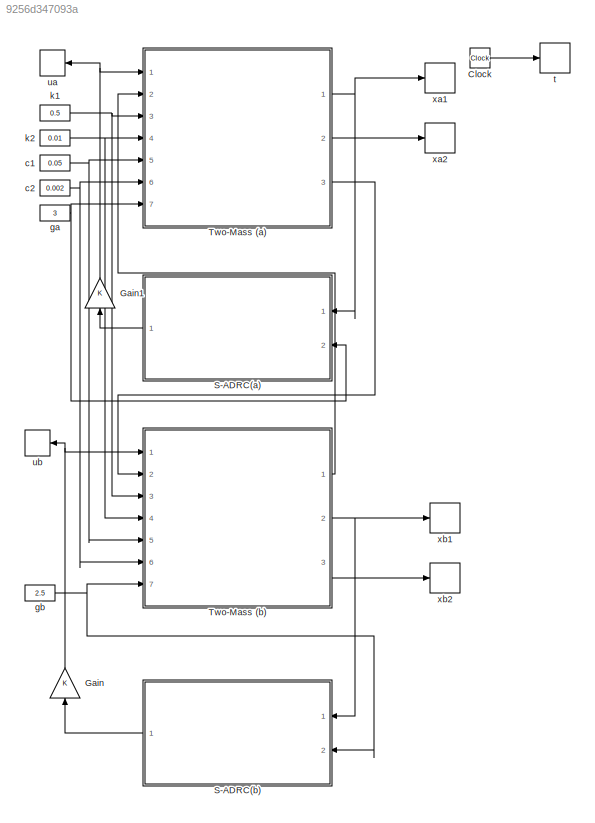
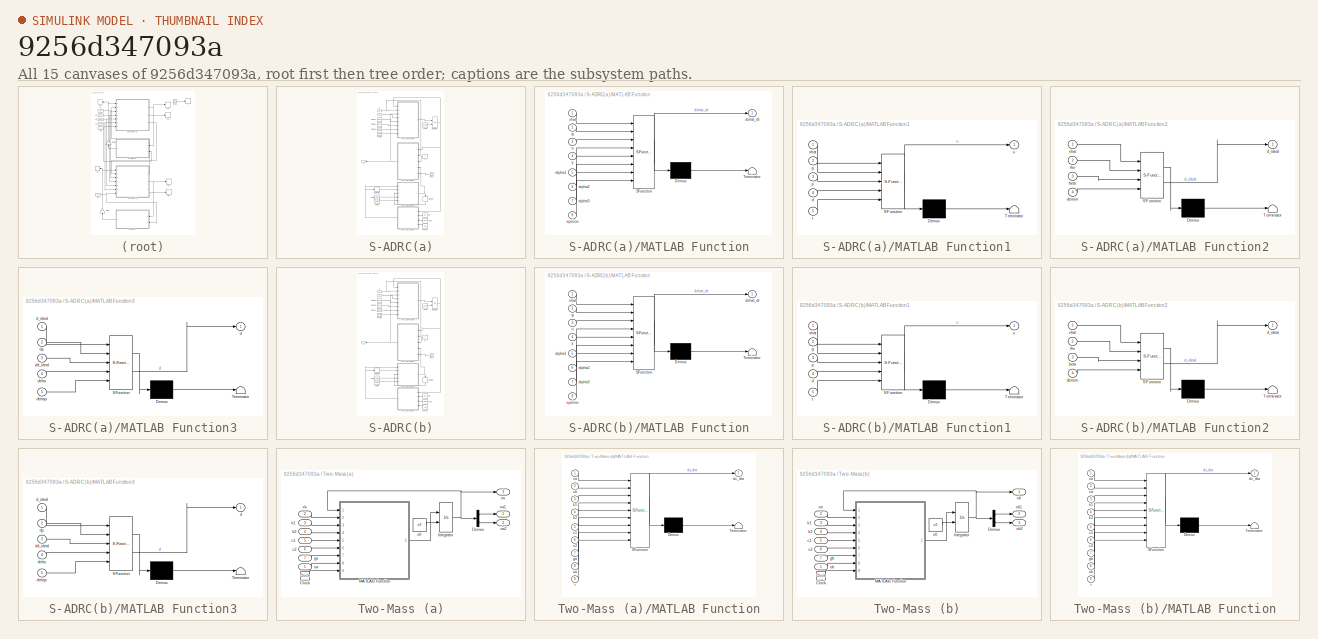
[diagram: thumbnail index - all 15 canvases of the model, root first then tree order]
MODEL slx_9256d347093a
KIND model
CONFIG AbsTol = auto
CONFIG EnableMultiTasking = off
CONFIG FixedStep = auto
CONFIG MaxStep = auto
CONFIG MinStep = auto
CONFIG RelTol = auto
CONFIG SampleTimeConstraint = Unconstrained
CONFIG SolverName = VariableStepAuto
CONFIG StartTime = 0.0
CONFIG StopTime = 10
BLOCK [Clock] Clock
BLOCK [Gain] Gain
  NameLocation = right
BLOCK [Gain] Gain1
  NameLocation = right
BLOCK [SubSystem] S-ADRC(a)
  Ports = [2, 1]
  RequestExecContextInheritance = off
BLOCK [Clock] S-ADRC(a)/Clock
BLOCK [Derivative] S-ADRC(a)/Derivative
BLOCK [Integrator] S-ADRC(a)/Integrator
  InitialConditionSource = external
  Ports = [2, 1]
BLOCK [SubSystem] S-ADRC(a)/MATLAB Function
  ErrorFcn = Stateflow.Translate.translate
  PermitHierarchicalResolution = ExplicitOnly
  Ports = [8, 1]
  RequestExecContextInheritance = off
  SFBlockType = MATLAB Function
  TreatAsAtomicUnit = on
BLOCK [Demux] S-ADRC(a)/MATLAB Function/ Demux 
  Outputs = 1
  Ports = [1, 1]
BLOCK [S-Function] S-ADRC(a)/MATLAB Function/ SFunction 
  EnableBusSupport = on
  FunctionName = sf_sfun
  PortCounts = [8 2]
  Ports = [8, 2]
  SFcnIsStateOwnerBlock = off
  SFunctionDeploymentMode = off
  Tag = Stateflow S-Function 6
BLOCK [Terminator] S-ADRC(a)/MATLAB Function/ Terminator 
BLOCK [Inport] S-ADRC(a)/MATLAB Function/alpha1
  Port = 5
BLOCK [Inport] S-ADRC(a)/MATLAB Function/alpha2
  Port = 6
BLOCK [Inport] S-ADRC(a)/MATLAB Function/alpha3
  Port = 7
BLOCK [Outport] S-ADRC(a)/MATLAB Function/dxhat_dt
BLOCK [Inport] S-ADRC(a)/MATLAB Function/epsilon
  Port = 8
BLOCK [Inport] S-ADRC(a)/MATLAB Function/g
  Port = 2
BLOCK [Inport] S-ADRC(a)/MATLAB Function/u
  Port = 3
BLOCK [Inport] S-ADRC(a)/MATLAB Function/xhat
BLOCK [Inport] S-ADRC(a)/MATLAB Function/y
  Port = 4
BLOCK [SubSystem] S-ADRC(a)/MATLAB Function1
  ErrorFcn = Stateflow.Translate.translate
  PermitHierarchicalResolution = ExplicitOnly
  Ports = [5, 1]
  RequestExecContextInheritance = off
  SFBlockType = MATLAB Function
  TreatAsAtomicUnit = on
BLOCK [Demux] S-ADRC(a)/MATLAB Function1/ Demux 
  Outputs = 1
  Ports = [1, 1]
BLOCK [S-Function] S-ADRC(a)/MATLAB Function1/ SFunction 
  EnableBusSupport = on
  FunctionName = sf_sfun
  PortCounts = [5 2]
  Ports = [5, 2]
  SFcnIsStateOwnerBlock = off
  SFunctionDeploymentMode = off
  Tag = Stateflow S-Function 7
BLOCK [Terminator] S-ADRC(a)/MATLAB Function1/ Terminator 
BLOCK [Inport] S-ADRC(a)/MATLAB Function1/d
  Port = 4
BLOCK [Inport] S-ADRC(a)/MATLAB Function1/g
  Port = 2
BLOCK [Inport] S-ADRC(a)/MATLAB Function1/p
  Port = 3
BLOCK [Inport] S-ADRC(a)/MATLAB Function1/t
  Port = 5
BLOCK [Outport] S-ADRC(a)/MATLAB Function1/u
BLOCK [Inport] S-ADRC(a)/MATLAB Function1/xhat
BLOCK [SubSystem] S-ADRC(a)/MATLAB Function2
  ErrorFcn = Stateflow.Translate.translate
  PermitHierarchicalResolution = ExplicitOnly
  Ports = [4, 1]
  RequestExecContextInheritance = off
  SFBlockType = MATLAB Function
  TreatAsAtomicUnit = on
BLOCK [Demux] S-ADRC(a)/MATLAB Function2/ Demux 
  Outputs = 1
  Ports = [1, 1]
BLOCK [S-Function] S-ADRC(a)/MATLAB Function2/ SFunction 
  EnableBusSupport = on
  FunctionName = sf_sfun
  PortCounts = [4 2]
  Ports = [4, 2]
  SFcnIsStateOwnerBlock = off
  SFunctionDeploymentMode = off
  Tag = Stateflow S-Function 8
BLOCK [Terminator] S-ADRC(a)/MATLAB Function2/ Terminator 
BLOCK [Inport] S-ADRC(a)/MATLAB Function2/beta
  Port = 3
BLOCK [Outport] S-ADRC(a)/MATLAB Function2/d_ideal
BLOCK [Inport] S-ADRC(a)/MATLAB Function2/denom
  Port = 4
BLOCK [Inport] S-ADRC(a)/MATLAB Function2/rho
  Port = 2
BLOCK [Inport] S-ADRC(a)/MATLAB Function2/xhat
BLOCK [SubSystem] S-ADRC(a)/MATLAB Function3
  ErrorFcn = Stateflow.Translate.translate
  PermitHierarchicalResolution = ExplicitOnly
  Ports = [5, 1]
  RequestExecContextInheritance = off
  SFBlockType = MATLAB Function
  TreatAsAtomicUnit = on
BLOCK [Demux] S-ADRC(a)/MATLAB Function3/ Demux 
  Outputs = 1
  Ports = [1, 1]
BLOCK [S-Function] S-ADRC(a)/MATLAB Function3/ SFunction 
  EnableBusSupport = on
  FunctionName = sf_sfun
  PortCounts = [5 2]
  Ports = [5, 2]
  SFcnIsStateOwnerBlock = off
  SFunctionDeploymentMode = off
  Tag = Stateflow S-Function 9
BLOCK [Terminator] S-ADRC(a)/MATLAB Function3/ Terminator 
BLOCK [Outport] S-ADRC(a)/MATLAB Function3/d
BLOCK [Inport] S-ADRC(a)/MATLAB Function3/d_ideal
BLOCK [Inport] S-ADRC(a)/MATLAB Function3/dd_ideal
  Port = 3
BLOCK [Inport] S-ADRC(a)/MATLAB Function3/delta
  Port = 4
BLOCK [Inport] S-ADRC(a)/MATLAB Function3/deltap
  Port = 5
BLOCK [Inport] S-ADRC(a)/MATLAB Function3/dp
  Port = 2
BLOCK [Memory] S-ADRC(a)/Memory
  NameLocation = left
BLOCK [Constant] S-ADRC(a)/alpha1
  Value = alpha1
BLOCK [Constant] S-ADRC(a)/alpha2
  Value = alpha2
BLOCK [Constant] S-ADRC(a)/alpha3
  Value = alpha3
BLOCK [Constant] S-ADRC(a)/beta
  Value = beta
BLOCK [Constant] S-ADRC(a)/delta
  Value = delta
BLOCK [Constant] S-ADRC(a)/deltap
  Value = deltap
BLOCK [Constant] S-ADRC(a)/denom
  Value = 1e-6
BLOCK [Constant] S-ADRC(a)/epsilon
  Value = epsilon
BLOCK [Inport] S-ADRC(a)/g
  Port = 2
BLOCK [Constant] S-ADRC(a)/p
  Value = p
BLOCK [Constant] S-ADRC(a)/rho
  Value = rho
BLOCK [Outport] S-ADRC(a)/u
BLOCK [Constant] S-ADRC(a)/xhat0
  Value = xhat0
BLOCK [Inport] S-ADRC(a)/y
BLOCK [SubSystem] S-ADRC(b)
  Ports = [2, 1]
  RequestExecContextInheritance = off
BLOCK [Clock] S-ADRC(b)/Clock
BLOCK [Derivative] S-ADRC(b)/Derivative
BLOCK [Integrator] S-ADRC(b)/Integrator
  InitialConditionSource = external
  Ports = [2, 1]
BLOCK [SubSystem] S-ADRC(b)/MATLAB Function
  ErrorFcn = Stateflow.Translate.translate
  PermitHierarchicalResolution = ExplicitOnly
  Ports = [8, 1]
  RequestExecContextInheritance = off
  SFBlockType = MATLAB Function
  TreatAsAtomicUnit = on
BLOCK [Demux] S-ADRC(b)/MATLAB Function/ Demux 
  Outputs = 1
  Ports = [1, 1]
BLOCK [S-Function] S-ADRC(b)/MATLAB Function/ SFunction 
  EnableBusSupport = on
  FunctionName = sf_sfun
  PortCounts = [8 2]
  Ports = [8, 2]
  SFcnIsStateOwnerBlock = off
  SFunctionDeploymentMode = off
  Tag = Stateflow S-Function 1
BLOCK [Terminator] S-ADRC(b)/MATLAB Function/ Terminator 
BLOCK [Inport] S-ADRC(b)/MATLAB Function/alpha1
  Port = 5
BLOCK [Inport] S-ADRC(b)/MATLAB Function/alpha2
  Port = 6
BLOCK [Inport] S-ADRC(b)/MATLAB Function/alpha3
  Port = 7
BLOCK [Outport] S-ADRC(b)/MATLAB Function/dxhat_dt
BLOCK [Inport] S-ADRC(b)/MATLAB Function/epsilon
  Port = 8
BLOCK [Inport] S-ADRC(b)/MATLAB Function/g
  Port = 2
BLOCK [Inport] S-ADRC(b)/MATLAB Function/u
  Port = 3
BLOCK [Inport] S-ADRC(b)/MATLAB Function/xhat
BLOCK [Inport] S-ADRC(b)/MATLAB Function/y
  Port = 4
BLOCK [SubSystem] S-ADRC(b)/MATLAB Function1
  ErrorFcn = Stateflow.Translate.translate
  PermitHierarchicalResolution = ExplicitOnly
  Ports = [5, 1]
  RequestExecContextInheritance = off
  SFBlockType = MATLAB Function
  TreatAsAtomicUnit = on
BLOCK [Demux] S-ADRC(b)/MATLAB Function1/ Demux 
  Outputs = 1
  Ports = [1, 1]
BLOCK [S-Function] S-ADRC(b)/MATLAB Function1/ SFunction 
  EnableBusSupport = on
  FunctionName = sf_sfun
  PortCounts = [5 2]
  Ports = [5, 2]
  SFcnIsStateOwnerBlock = off
  SFunctionDeploymentMode = off
  Tag = Stateflow S-Function 3
BLOCK [Terminator] S-ADRC(b)/MATLAB Function1/ Terminator 
BLOCK [Inport] S-ADRC(b)/MATLAB Function1/d
  Port = 4
BLOCK [Inport] S-ADRC(b)/MATLAB Function1/g
  Port = 2
BLOCK [Inport] S-ADRC(b)/MATLAB Function1/p
  Port = 3
BLOCK [Inport] S-ADRC(b)/MATLAB Function1/t
  Port = 5
BLOCK [Outport] S-ADRC(b)/MATLAB Function1/u
BLOCK [Inport] S-ADRC(b)/MATLAB Function1/xhat
BLOCK [SubSystem] S-ADRC(b)/MATLAB Function2
  ErrorFcn = Stateflow.Translate.translate
  PermitHierarchicalResolution = ExplicitOnly
  Ports = [4, 1]
  RequestExecContextInheritance = off
  SFBlockType = MATLAB Function
  TreatAsAtomicUnit = on
BLOCK [Demux] S-ADRC(b)/MATLAB Function2/ Demux 
  Outputs = 1
  Ports = [1, 1]
BLOCK [S-Function] S-ADRC(b)/MATLAB Function2/ SFunction 
  EnableBusSupport = on
  FunctionName = sf_sfun
  PortCounts = [4 2]
  Ports = [4, 2]
  SFcnIsStateOwnerBlock = off
  SFunctionDeploymentMode = off
  Tag = Stateflow S-Function 4
BLOCK [Terminator] S-ADRC(b)/MATLAB Function2/ Terminator 
BLOCK [Inport] S-ADRC(b)/MATLAB Function2/beta
  Port = 3
BLOCK [Outport] S-ADRC(b)/MATLAB Function2/d_ideal
BLOCK [Inport] S-ADRC(b)/MATLAB Function2/denom
  Port = 4
BLOCK [Inport] S-ADRC(b)/MATLAB Function2/rho
  Port = 2
BLOCK [Inport] S-ADRC(b)/MATLAB Function2/xhat
BLOCK [SubSystem] S-ADRC(b)/MATLAB Function3
  ErrorFcn = Stateflow.Translate.translate
  PermitHierarchicalResolution = ExplicitOnly
  Ports = [5, 1]
  RequestExecContextInheritance = off
  SFBlockType = MATLAB Function
  TreatAsAtomicUnit = on
BLOCK [Demux] S-ADRC(b)/MATLAB Function3/ Demux 
  Outputs = 1
  Ports = [1, 1]
BLOCK [S-Function] S-ADRC(b)/MATLAB Function3/ SFunction 
  EnableBusSupport = on
  FunctionName = sf_sfun
  PortCounts = [5 2]
  Ports = [5, 2]
  SFcnIsStateOwnerBlock = off
  SFunctionDeploymentMode = off
  Tag = Stateflow S-Function 5
BLOCK [Terminator] S-ADRC(b)/MATLAB Function3/ Terminator 
BLOCK [Outport] S-ADRC(b)/MATLAB Function3/d
BLOCK [Inport] S-ADRC(b)/MATLAB Function3/d_ideal
BLOCK [Inport] S-ADRC(b)/MATLAB Function3/dd_ideal
  Port = 3
BLOCK [Inport] S-ADRC(b)/MATLAB Function3/delta
  Port = 4
BLOCK [Inport] S-ADRC(b)/MATLAB Function3/deltap
  Port = 5
BLOCK [Inport] S-ADRC(b)/MATLAB Function3/dp
  Port = 2
BLOCK [Memory] S-ADRC(b)/Memory
  NameLocation = left
BLOCK [Constant] S-ADRC(b)/alpha1
  Value = alpha1
BLOCK [Constant] S-ADRC(b)/alpha2
  Value = alpha2
BLOCK [Constant] S-ADRC(b)/alpha3
  Value = alpha3
BLOCK [Constant] S-ADRC(b)/beta
  Value = beta
BLOCK [Constant] S-ADRC(b)/delta
  Value = delta
BLOCK [Constant] S-ADRC(b)/deltap
  Value = deltap
BLOCK [Constant] S-ADRC(b)/denom
  Value = 1e-6
BLOCK [Constant] S-ADRC(b)/epsilon
  Value = epsilon
BLOCK [Inport] S-ADRC(b)/g
  Port = 2
BLOCK [Constant] S-ADRC(b)/p
  Value = p
BLOCK [Constant] S-ADRC(b)/rho
  Value = rho
BLOCK [Outport] S-ADRC(b)/u
BLOCK [Constant] S-ADRC(b)/xhat0
  Value = xhat0
BLOCK [Inport] S-ADRC(b)/y
BLOCK [SubSystem] Two-Mass (a)
  Ports = [7, 3]
  RequestExecContextInheritance = off
BLOCK [Clock] Two-Mass (a)/Clock
BLOCK [Demux] Two-Mass (a)/Demux
  Outputs = 2
  Ports = [1, 2]
BLOCK [Integrator] Two-Mass (a)/Integrator
  InitialConditionSource = external
  Ports = [2, 1]
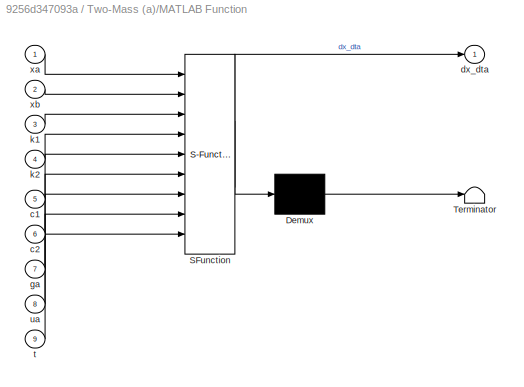
BLOCK [SubSystem] Two-Mass (a)/MATLAB Function
  ErrorFcn = Stateflow.Translate.translate
  PermitHierarchicalResolution = ExplicitOnly
  Ports = [9, 1]
  RequestExecContextInheritance = off
  SFBlockType = MATLAB Function
  TreatAsAtomicUnit = on
BLOCK [Demux] Two-Mass (a)/MATLAB Function/ Demux 
  Outputs = 1
  Ports = [1, 1]
BLOCK [S-Function] Two-Mass (a)/MATLAB Function/ SFunction 
  EnableBusSupport = on
  FunctionName = sf_sfun
  PortCounts = [9 2]
  Ports = [9, 2]
  SFcnIsStateOwnerBlock = off
  SFunctionDeploymentMode = off
  Tag = Stateflow S-Function 2
BLOCK [Terminator] Two-Mass (a)/MATLAB Function/ Terminator 
BLOCK [Inport] Two-Mass (a)/MATLAB Function/c1
  Port = 5
BLOCK [Inport] Two-Mass (a)/MATLAB Function/c2
  Port = 6
BLOCK [Outport] Two-Mass (a)/MATLAB Function/dx_dta
BLOCK [Inport] Two-Mass (a)/MATLAB Function/ga
  Port = 7
BLOCK [Inport] Two-Mass (a)/MATLAB Function/k1
  Port = 3
BLOCK [Inport] Two-Mass (a)/MATLAB Function/k2
  Port = 4
BLOCK [Inport] Two-Mass (a)/MATLAB Function/t
  Port = 9
BLOCK [Inport] Two-Mass (a)/MATLAB Function/ua
  Port = 8
BLOCK [Inport] Two-Mass (a)/MATLAB Function/xa
BLOCK [Inport] Two-Mass (a)/MATLAB Function/xb
  Port = 2
BLOCK [Inport] Two-Mass (a)/c1
  Port = 5
BLOCK [Inport] Two-Mass (a)/c2
  Port = 6
BLOCK [Inport] Two-Mass (a)/ga
  Port = 7
BLOCK [Inport] Two-Mass (a)/k1
  Port = 3
BLOCK [Inport] Two-Mass (a)/k2
  Port = 4
BLOCK [Inport] Two-Mass (a)/ua
BLOCK [Constant] Two-Mass (a)/x0
  Value = x0
BLOCK [Outport] Two-Mass (a)/xa
  Port = 3
BLOCK [Outport] Two-Mass (a)/xa1
BLOCK [Outport] Two-Mass (a)/xa2
  Port = 2
BLOCK [Inport] Two-Mass (a)/xb
  Port = 2
BLOCK [SubSystem] Two-Mass (b)
  Ports = [7, 3]
  RequestExecContextInheritance = off
BLOCK [Clock] Two-Mass (b)/Clock
BLOCK [Demux] Two-Mass (b)/Demux
  Outputs = 2
  Ports = [1, 2]
BLOCK [Integrator] Two-Mass (b)/Integrator
  InitialConditionSource = external
  Ports = [2, 1]
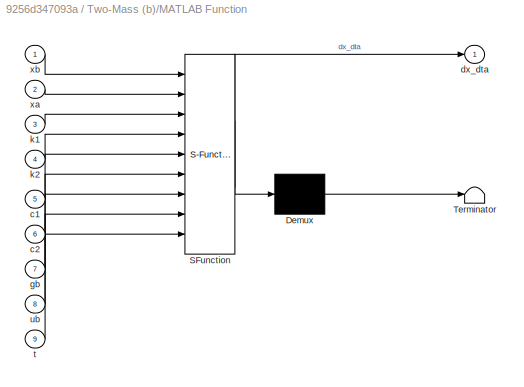
BLOCK [SubSystem] Two-Mass (b)/MATLAB Function
  ErrorFcn = Stateflow.Translate.translate
  PermitHierarchicalResolution = ExplicitOnly
  Ports = [9, 1]
  RequestExecContextInheritance = off
  SFBlockType = MATLAB Function
  TreatAsAtomicUnit = on
BLOCK [Demux] Two-Mass (b)/MATLAB Function/ Demux 
  Outputs = 1
  Ports = [1, 1]
BLOCK [S-Function] Two-Mass (b)/MATLAB Function/ SFunction 
  EnableBusSupport = on
  FunctionName = sf_sfun
  PortCounts = [9 2]
  Ports = [9, 2]
  SFcnIsStateOwnerBlock = off
  SFunctionDeploymentMode = off
  Tag = Stateflow S-Function 10
BLOCK [Terminator] Two-Mass (b)/MATLAB Function/ Terminator 
BLOCK [Inport] Two-Mass (b)/MATLAB Function/c1
  Port = 5
BLOCK [Inport] Two-Mass (b)/MATLAB Function/c2
  Port = 6
BLOCK [Outport] Two-Mass (b)/MATLAB Function/dx_dta
BLOCK [Inport] Two-Mass (b)/MATLAB Function/gb
  Port = 7
BLOCK [Inport] Two-Mass (b)/MATLAB Function/k1
  Port = 3
BLOCK [Inport] Two-Mass (b)/MATLAB Function/k2
  Port = 4
BLOCK [Inport] Two-Mass (b)/MATLAB Function/t
  Port = 9
BLOCK [Inport] Two-Mass (b)/MATLAB Function/ub
  Port = 8
BLOCK [Inport] Two-Mass (b)/MATLAB Function/xa
  Port = 2
BLOCK [Inport] Two-Mass (b)/MATLAB Function/xb
BLOCK [Inport] Two-Mass (b)/c1
  Port = 5
BLOCK [Inport] Two-Mass (b)/c2
  Port = 6
BLOCK [Inport] Two-Mass (b)/gb
  Port = 7
BLOCK [Inport] Two-Mass (b)/k1
  Port = 3
BLOCK [Inport] Two-Mass (b)/k2
  Port = 4
BLOCK [Inport] Two-Mass (b)/ub
BLOCK [Constant] Two-Mass (b)/x0
  Value = x0
BLOCK [Inport] Two-Mass (b)/xa
  Port = 2
BLOCK [Outport] Two-Mass (b)/xb
BLOCK [Outport] Two-Mass (b)/xb1
  Port = 2
BLOCK [Outport] Two-Mass (b)/xb2
  Port = 3
BLOCK [Constant] c1
  Value = 0.05
BLOCK [Constant] c2
  Value = 0.002
BLOCK [Constant] ga
  Value = 3
BLOCK [Constant] gb
  Value = 2.5
BLOCK [Constant] k1
  Value = 0.5
BLOCK [Constant] k2
  Value = 0.01
BLOCK [ToWorkspace] t
  FixptAsFi = on
  MaxDataPoints = inf
  Ports = [1]
  SampleTime = -1
  Save2DSignal = 2-D array (concatenate along first dimension)
  VariableName = t
BLOCK [ToWorkspace] ua
  FixptAsFi = on
  MaxDataPoints = inf
  NameLocation = top
  Ports = [1]
  SampleTime = -1
  Save2DSignal = 2-D array (concatenate along first dimension)
  VariableName = ua
BLOCK [ToWorkspace] ub
  FixptAsFi = on
  MaxDataPoints = inf
  NameLocation = top
  Ports = [1]
  SampleTime = -1
  Save2DSignal = 2-D array (concatenate along first dimension)
  VariableName = ub
BLOCK [ToWorkspace] xa1
  FixptAsFi = on
  MaxDataPoints = inf
  Ports = [1]
  SampleTime = -1
  Save2DSignal = 2-D array (concatenate along first dimension)
  VariableName = xa1
BLOCK [ToWorkspace] xa2
  FixptAsFi = on
  MaxDataPoints = inf
  Ports = [1]
  SampleTime = -1
  Save2DSignal = 2-D array (concatenate along first dimension)
  VariableName = xa2
BLOCK [ToWorkspace] xb1
  FixptAsFi = on
  MaxDataPoints = inf
  Ports = [1]
  SampleTime = -1
  Save2DSignal = 2-D array (concatenate along first dimension)
  VariableName = xb1
BLOCK [ToWorkspace] xb2
  FixptAsFi = on
  MaxDataPoints = inf
  Ports = [1]
  SampleTime = -1
  Save2DSignal = 2-D array (concatenate along first dimension)
  VariableName = xb2
LINE Clock:1 -> t:1
NET Gain1:1 -> Two-Mass (a):1, ua:1
NET Gain:1 -> Two-Mass (b):1, ub:1
LINE S-ADRC(a)/Clock:1 -> S-ADRC(a)/MATLAB Function1:5
LINE S-ADRC(a)/Derivative:1 -> S-ADRC(a)/MATLAB Function3:2
NET S-ADRC(a)/Integrator:1 -> S-ADRC(a)/MATLAB Function1:1, S-ADRC(a)/MATLAB Function2:1, S-ADRC(a)/MATLAB Function:1
NET S-ADRC(a)/MATLAB Function1:1 -> S-ADRC(a)/MATLAB Function:3, S-ADRC(a)/u:1
NET S-ADRC(a)/MATLAB Function2:1 -> S-ADRC(a)/Derivative:1, S-ADRC(a)/MATLAB Function3:1
NET S-ADRC(a)/MATLAB Function3:1 -> S-ADRC(a)/MATLAB Function1:4, S-ADRC(a)/Memory:1
LINE S-ADRC(a)/MATLAB Function:1 -> S-ADRC(a)/Integrator:1
LINE S-ADRC(a)/Memory:1 -> S-ADRC(a)/MATLAB Function3:3
LINE S-ADRC(a)/alpha1:1 -> S-ADRC(a)/MATLAB Function:5
LINE S-ADRC(a)/alpha2:1 -> S-ADRC(a)/MATLAB Function:6
LINE S-ADRC(a)/alpha3:1 -> S-ADRC(a)/MATLAB Function:7
LINE S-ADRC(a)/beta:1 -> S-ADRC(a)/MATLAB Function2:3
LINE S-ADRC(a)/delta:1 -> S-ADRC(a)/MATLAB Function3:4
LINE S-ADRC(a)/deltap:1 -> S-ADRC(a)/MATLAB Function3:5
LINE S-ADRC(a)/denom:1 -> S-ADRC(a)/MATLAB Function2:4
LINE S-ADRC(a)/epsilon:1 -> S-ADRC(a)/MATLAB Function:8
NET S-ADRC(a)/g:1 -> S-ADRC(a)/MATLAB Function1:2, S-ADRC(a)/MATLAB Function:2
LINE S-ADRC(a)/p:1 -> S-ADRC(a)/MATLAB Function1:3
LINE S-ADRC(a)/rho:1 -> S-ADRC(a)/MATLAB Function2:2
LINE S-ADRC(a)/xhat0:1 -> S-ADRC(a)/Integrator:2
LINE S-ADRC(a)/y:1 -> S-ADRC(a)/MATLAB Function:4
LINE S-ADRC(a):1 -> Gain1:1
LINE S-ADRC(b)/Clock:1 -> S-ADRC(b)/MATLAB Function1:5
LINE S-ADRC(b)/Derivative:1 -> S-ADRC(b)/MATLAB Function3:2
NET S-ADRC(b)/Integrator:1 -> S-ADRC(b)/MATLAB Function1:1, S-ADRC(b)/MATLAB Function2:1, S-ADRC(b)/MATLAB Function:1
NET S-ADRC(b)/MATLAB Function1:1 -> S-ADRC(b)/MATLAB Function:3, S-ADRC(b)/u:1
NET S-ADRC(b)/MATLAB Function2:1 -> S-ADRC(b)/Derivative:1, S-ADRC(b)/MATLAB Function3:1
NET S-ADRC(b)/MATLAB Function3:1 -> S-ADRC(b)/MATLAB Function1:4, S-ADRC(b)/Memory:1
LINE S-ADRC(b)/MATLAB Function:1 -> S-ADRC(b)/Integrator:1
LINE S-ADRC(b)/Memory:1 -> S-ADRC(b)/MATLAB Function3:3
LINE S-ADRC(b)/alpha1:1 -> S-ADRC(b)/MATLAB Function:5
LINE S-ADRC(b)/alpha2:1 -> S-ADRC(b)/MATLAB Function:6
LINE S-ADRC(b)/alpha3:1 -> S-ADRC(b)/MATLAB Function:7
LINE S-ADRC(b)/beta:1 -> S-ADRC(b)/MATLAB Function2:3
LINE S-ADRC(b)/delta:1 -> S-ADRC(b)/MATLAB Function3:4
LINE S-ADRC(b)/deltap:1 -> S-ADRC(b)/MATLAB Function3:5
LINE S-ADRC(b)/denom:1 -> S-ADRC(b)/MATLAB Function2:4
LINE S-ADRC(b)/epsilon:1 -> S-ADRC(b)/MATLAB Function:8
NET S-ADRC(b)/g:1 -> S-ADRC(b)/MATLAB Function1:2, S-ADRC(b)/MATLAB Function:2
LINE S-ADRC(b)/p:1 -> S-ADRC(b)/MATLAB Function1:3
LINE S-ADRC(b)/rho:1 -> S-ADRC(b)/MATLAB Function2:2
LINE S-ADRC(b)/xhat0:1 -> S-ADRC(b)/Integrator:2
LINE S-ADRC(b)/y:1 -> S-ADRC(b)/MATLAB Function:4
LINE S-ADRC(b):1 -> Gain:1
LINE Two-Mass (a)/Clock:1 -> Two-Mass (a)/MATLAB Function:9
LINE Two-Mass (a)/Demux:1 -> Two-Mass (a)/xa1:1
LINE Two-Mass (a)/Demux:2 -> Two-Mass (a)/xa2:1
NET Two-Mass (a)/Integrator:1 -> Two-Mass (a)/Demux:1, Two-Mass (a)/MATLAB Function:1, Two-Mass (a)/xa:1
LINE Two-Mass (a)/MATLAB Function:1 -> Two-Mass (a)/Integrator:1
LINE Two-Mass (a)/c1:1 -> Two-Mass (a)/MATLAB Function:5
LINE Two-Mass (a)/c2:1 -> Two-Mass (a)/MATLAB Function:6
LINE Two-Mass (a)/ga:1 -> Two-Mass (a)/MATLAB Function:7
LINE Two-Mass (a)/k1:1 -> Two-Mass (a)/MATLAB Function:3
LINE Two-Mass (a)/k2:1 -> Two-Mass (a)/MATLAB Function:4
LINE Two-Mass (a)/ua:1 -> Two-Mass (a)/MATLAB Function:8
LINE Two-Mass (a)/x0:1 -> Two-Mass (a)/Integrator:2
LINE Two-Mass (a)/xb:1 -> Two-Mass (a)/MATLAB Function:2
NET Two-Mass (a):1 -> S-ADRC(a):1, xa1:1
LINE Two-Mass (a):2 -> xa2:1
LINE Two-Mass (a):3 -> Two-Mass (b):2
LINE Two-Mass (b)/Clock:1 -> Two-Mass (b)/MATLAB Function:9
LINE Two-Mass (b)/Demux:1 -> Two-Mass (b)/xb1:1
LINE Two-Mass (b)/Demux:2 -> Two-Mass (b)/xb2:1
NET Two-Mass (b)/Integrator:1 -> Two-Mass (b)/Demux:1, Two-Mass (b)/MATLAB Function:1, Two-Mass (b)/xb:1
LINE Two-Mass (b)/MATLAB Function:1 -> Two-Mass (b)/Integrator:1
LINE Two-Mass (b)/c1:1 -> Two-Mass (b)/MATLAB Function:5
LINE Two-Mass (b)/c2:1 -> Two-Mass (b)/MATLAB Function:6
LINE Two-Mass (b)/gb:1 -> Two-Mass (b)/MATLAB Function:7
LINE Two-Mass (b)/k1:1 -> Two-Mass (b)/MATLAB Function:3
LINE Two-Mass (b)/k2:1 -> Two-Mass (b)/MATLAB Function:4
LINE Two-Mass (b)/ub:1 -> Two-Mass (b)/MATLAB Function:8
LINE Two-Mass (b)/x0:1 -> Two-Mass (b)/Integrator:2
LINE Two-Mass (b)/xa:1 -> Two-Mass (b)/MATLAB Function:2
LINE Two-Mass (b):1 -> Two-Mass (a):2
NET Two-Mass (b):2 -> S-ADRC(b):1, xb1:1
LINE Two-Mass (b):3 -> xb2:1
NET c1:1 -> Two-Mass (a):5, Two-Mass (b):5
NET c2:1 -> Two-Mass (a):6, Two-Mass (b):6
NET ga:1 -> S-ADRC(a):2, Two-Mass (a):7
NET gb:1 -> S-ADRC(b):2, Two-Mass (b):7
NET k1:1 -> Two-Mass (a):3, Two-Mass (b):3
NET k2:1 -> Two-Mass (a):4, Two-Mass (b):4
note: NET lines group one-source signal fan-out (src -> all destinations, sorted); 1:1 wires keep LINE
CHART S-ADRC(a)/MATLAB Function2 states=1 transitions=1
  STATE_LABEL 'eML_blk_kernel()'
  STATE_LABEL 'SCRIPT:\nfunction d_ideal = d_gen(xhat,rho,beta,denom)\n\nd_ideal=sqrt(((xhat(3)-rho*xhat(1))/(xhat(2)+denom))^2+beta);\n'
CHART S-ADRC(a)/MATLAB Function3 states=1 transitions=1
  STATE_LABEL 'eML_blk_kernel()'
  STATE_LABEL 'SCRIPT:\nfunction d = d_gen(d_ideal,dp,dd_ideal,delta,deltap)\n\nif d_ideal>delta\n    \n    d=delta;\n    \nelseif dd_ideal>deltap\n    \n    d=dp;\n    \nelse\n\nd = d_ideal;\n\nend\n'
CHART Two-Mass (b)/MATLAB Function states=1 transitions=1
  STATE_LABEL 'eML_blk_kernel()'
  STATE_LABEL 'SCRIPT:\nfunction dx_dta  = dyn(xb,xa,k1,k2,c1,c2,gb,ub,t)\n\nfb=k1*(xa(1)-xb(1))+k2*(xa(1)-xb(1))^3+c1*(xa(2)-xb(2))+c2*(xa(2)-xb(2))^3;\n\ndx_dta = [xb(2)\n         fb+gb*ub];'
CHART S-ADRC(b)/MATLAB Function states=1 transitions=1
  STATE_LABEL 'eML_blk_kernel()'
  STATE_LABEL 'SCRIPT:\nfunction dxhat_dt = LESO(xhat,g,u,y,alpha1,alpha2,alpha3,epsilon)\n\ndxhat_dt=[xhat(2)+(alpha1/epsilon)*(y-xhat(1))\n          xhat(3)+(alpha2/epsilon^2)*(y-xhat(1))+g*u\n          (alpha3/epsilon^3)*(y-xhat(1))];\n'
CHART Two-Mass (a)/MATLAB Function states=1 transitions=1
  STATE_LABEL 'eML_blk_kernel()'
  STATE_LABEL 'SCRIPT:\nfunction dx_dta  = dyn(xa,xb,k1,k2,c1,c2,ga,ua,t)\n\nfb=k1*(xa(1)-xb(1))+k2*(xa(1)-xb(1))^3+c1*(xa(2)-xb(2))+c2*(xa(2)-xb(2))^3;\n\nfa=-fb;\n\ndx_dta = [xa(2)\n         fa+ga*ua];'
CHART S-ADRC(b)/MATLAB Function1 states=1 transitions=1
  STATE_LABEL 'eML_blk_kernel()'
  STATE_LABEL 'SCRIPT:\nfunction u = Controller(xhat,g,p,d,t)\n\n% d=4.2;\n\nu=-1/g*(p*xhat(1)+d*xhat(2)+xhat(3));\n\nif t<0\n    \n    u=0;\n    \nend'
CHART S-ADRC(b)/MATLAB Function2 states=1 transitions=1
  STATE_LABEL 'eML_blk_kernel()'
  STATE_LABEL 'SCRIPT:\nfunction d_ideal = d_gen(xhat,rho,beta,denom)\n\nd_ideal=sqrt(((xhat(3)-rho*xhat(1))/(xhat(2)+denom))^2+beta);\n'
CHART S-ADRC(b)/MATLAB Function3 states=1 transitions=1
  STATE_LABEL 'eML_blk_kernel()'
  STATE_LABEL 'SCRIPT:\nfunction d = d_gen(d_ideal,dp,dd_ideal,delta,deltap)\n\nif d_ideal>delta\n    \n    d=delta;\n    \nelseif dd_ideal>deltap\n    \n    d=dp;\n    \nelse\n\nd = d_ideal;\n\nend\n'
CHART S-ADRC(a)/MATLAB Function states=1 transitions=1
  STATE_LABEL 'eML_blk_kernel()'
  STATE_LABEL 'SCRIPT:\nfunction dxhat_dt = LESO(xhat,g,u,y,alpha1,alpha2,alpha3,epsilon)\n\ndxhat_dt=[xhat(2)+(alpha1/epsilon)*(y-xhat(1))\n          xhat(3)+(alpha2/epsilon^2)*(y-xhat(1))+g*u\n          (alpha3/epsilon^3)*(y-xhat(1))];\n'
CHART S-ADRC(a)/MATLAB Function1 states=1 transitions=1
  STATE_LABEL 'eML_blk_kernel()'
  STATE_LABEL 'SCRIPT:\nfunction u = Controller(xhat,g,p,d,t)\n\n% d=4.2;\n\nu=-1/g*(p*xhat(1)+d*xhat(2)+xhat(3));\n\nif t<0\n    \n    u=0;\n    \nend'
CHART  states=0 transitions=0
CHART  states=0 transitions=0
CHART  states=0 transitions=0
CHART  states=0 transitions=0
CHART  states=0 transitions=0
CHART  states=0 transitions=0
CHART  states=0 transitions=0
CHART  states=0 transitions=0
CHART  states=0 transitions=0
CHART  states=0 transitions=0
